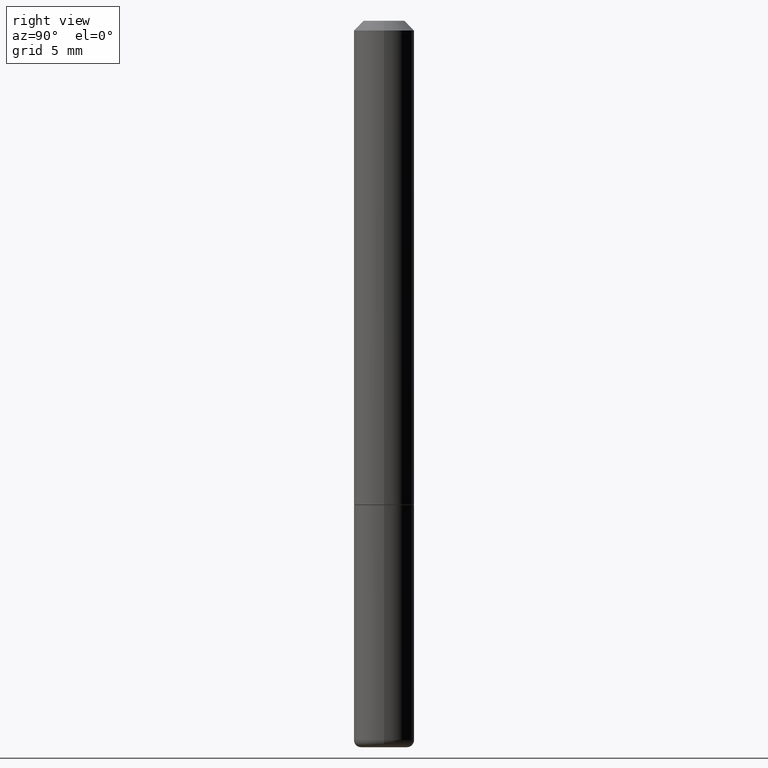
[diagram: clean part render]
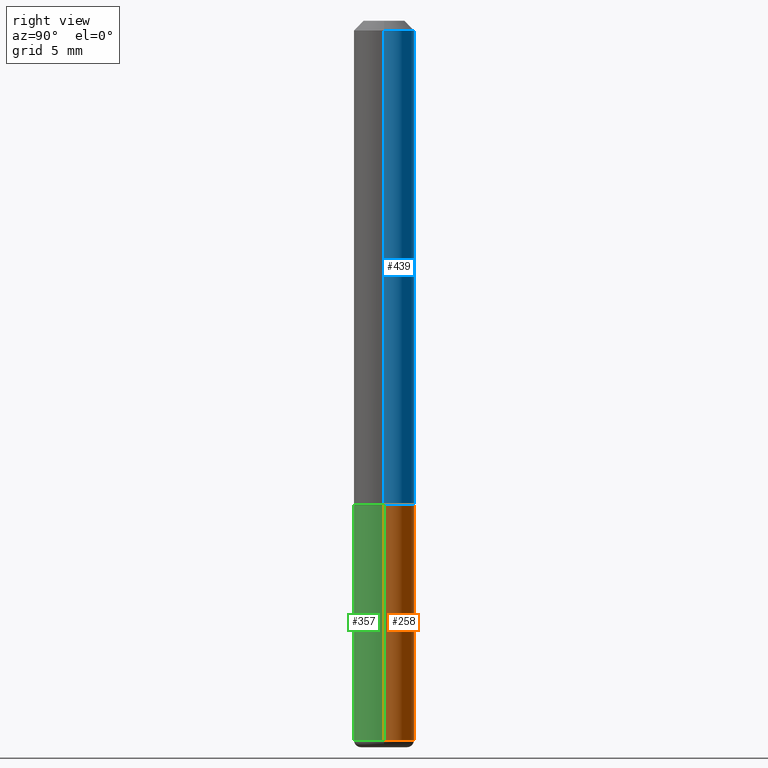
[diagram: same view with three faces highlighted in distinct colors, each labeled with its STEP entity id]
A machine part, right view with three faces highlighted in distinct colors.
Their STEP definitions:

[orange] entity #258 — the highlighted cylindrical surface (edge-blend (fillet) strip) has radius 1.5875 mm, axis along (-0, 0, 1).
#5 = ORIENTED_EDGE ( 'NONE', *, *, #74, .F. ) ;
#15 = DIRECTION ( 'NONE',  ( 1.000000000000000000, -6.982962677686259611E-15, 0.000000000000000000 ) ) ;
#16 = VECTOR ( 'NONE', #86, 39.37007874015748143 ) ;
#23 = EDGE_CURVE ( 'NONE', #211, #413, #202, .T. ) ;
#28 = CARTESIAN_POINT ( 'NONE',  ( 0.06249999999999988204, -4.364351673553908312E-16, 3.047610484872453915E-30 ) ) ;
#37 = CIRCLE ( 'NONE', #422, 0.06250000000000001388 ) ;
#74 = EDGE_CURVE ( 'NONE', #166, #253, #37, .T. ) ;
#83 = DIRECTION ( 'NONE',  ( -2.445468806185136597E-29, 3.491481338843145583E-15, 1.000000000000000000 ) ) ;
#86 = DIRECTION ( 'NONE',  ( -2.445468806185136877E-29, 3.491481338843145188E-15, 1.000000000000000000 ) ) ;
#93 = AXIS2_PLACEMENT_3D ( 'NONE', #189, #333, #121 ) ;
#95 = CYLINDRICAL_SURFACE ( 'NONE', #93, 0.06249999999999988204 ) ;
#121 = DIRECTION ( 'NONE',  ( 1.000000000000000000, -6.982962677686266711E-15, 4.876176775795935232E-29 ) ) ;
#133 = EDGE_CURVE ( 'NONE', #413, #253, #145, .T. ) ;
#145 = LINE ( 'NONE', #393, #16 ) ;
#165 = AXIS2_PLACEMENT_3D ( 'NONE', #213, #83, #15 ) ;
#166 = VERTEX_POINT ( 'NONE', #362 ) ;
#171 = CARTESIAN_POINT ( 'NONE',  ( -0.06249999999999975020, -3.894112240816274685E-15, -1.485020556978682515 ) ) ;
#189 = CARTESIAN_POINT ( 'NONE',  ( 0.000000000000000000, 0.000000000000000000, 0.000000000000000000 ) ) ;
#190 = CARTESIAN_POINT ( 'NONE',  ( 0.06249999999999975020, -5.621356729844913983E-15, -1.485020556978682515 ) ) ;
#191 = EDGE_CURVE ( 'NONE', #211, #166, #363, .T. ) ;
#202 = CIRCLE ( 'NONE', #165, 0.06249999999999975020 ) ;
#211 = VERTEX_POINT ( 'NONE', #190 ) ;
#213 = CARTESIAN_POINT ( 'NONE',  ( 3.631571448635045368E-29, -5.184921562489524681E-15, -1.485020556978682515 ) ) ;
#216 = ORIENTED_EDGE ( 'NONE', *, *, #191, .F. ) ;
#225 = CARTESIAN_POINT ( 'NONE',  ( -0.06250000000000001388, -3.894112240816274685E-15, -1.000000000000000222 ) ) ;
#246 = ORIENTED_EDGE ( 'NONE', *, *, #23, .T. ) ;
#251 = CARTESIAN_POINT ( 'NONE',  ( 2.445468806185137438E-29, -3.491481338843146371E-15, -1.000000000000000222 ) ) ;
#253 = VERTEX_POINT ( 'NONE', #225 ) ;
#258 = ADVANCED_FACE ( 'NONE', ( #291 ), #95, .T. ) ;
#269 = ORIENTED_EDGE ( 'NONE', *, *, #133, .T. ) ;
#285 = DIRECTION ( 'NONE',  ( 1.000000000000000000, -6.982962677686269077E-15, 0.000000000000000000 ) ) ;
#291 = FACE_OUTER_BOUND ( 'NONE', #441, .T. ) ;
#326 = VECTOR ( 'NONE', #365, 39.37007874015748143 ) ;
#333 = DIRECTION ( 'NONE',  ( -2.445468806185136597E-29, 3.491481338843145583E-15, 1.000000000000000000 ) ) ;
#362 = CARTESIAN_POINT ( 'NONE',  ( 0.06250000000000001388, -3.927916506198538435E-15, -1.000000000000000222 ) ) ;
#363 = LINE ( 'NONE', #28, #326 ) ;
#365 = DIRECTION ( 'NONE',  ( -2.445468806185136877E-29, 3.491481338843145188E-15, 1.000000000000000000 ) ) ;
#393 = CARTESIAN_POINT ( 'NONE',  ( -0.06249999999999988204, 4.440892098500617780E-16, -3.074334431409310158E-30 ) ) ;
#413 = VERTEX_POINT ( 'NONE', #171 ) ;
#422 = AXIS2_PLACEMENT_3D ( 'NONE', #251, #423, #285 ) ;
#423 = DIRECTION ( 'NONE',  ( -2.445468806185136597E-29, 3.491481338843145583E-15, 1.000000000000000000 ) ) ;
#441 = EDGE_LOOP ( 'NONE', ( #246, #269, #5, #216 ) ) ;

[blue] entity #439 — the highlighted cylindrical surface (edge-blend (fillet) strip) has radius 1.5875 mm, axis along (-0, 0, 1).
#4 = CARTESIAN_POINT ( 'NONE',  ( 0.000000000000000000, 0.000000000000000000, 0.000000000000000000 ) ) ;
#6 = CARTESIAN_POINT ( 'NONE',  ( -0.06249999999999988204, 4.440892098500617780E-16, -3.074334431409310158E-30 ) ) ;
#13 = DIRECTION ( 'NONE',  ( 1.000000000000000000, -6.982962677686268288E-15, 0.000000000000000000 ) ) ;
#30 = VECTOR ( 'NONE', #295, 39.37007874015748143 ) ;
#44 = EDGE_CURVE ( 'NONE', #378, #266, #64, .T. ) ;
#57 = LINE ( 'NONE', #6, #162 ) ;
#62 = CARTESIAN_POINT ( 'NONE',  ( 0.06249999999999988204, -4.364351673553908312E-16, 3.047610484872453915E-30 ) ) ;
#63 = DIRECTION ( 'NONE',  ( 1.000000000000000000, -6.982962677686266711E-15, 4.876176775795935232E-29 ) ) ;
#64 = CIRCLE ( 'NONE', #437, 0.06249999999999995143 ) ;
#90 = LINE ( 'NONE', #62, #30 ) ;
#100 = AXIS2_PLACEMENT_3D ( 'NONE', #203, #416, #308 ) ;
#101 = ORIENTED_EDGE ( 'NONE', *, *, #424, .F. ) ;
#116 = CIRCLE ( 'NONE', #100, 0.06249999999999981265 ) ;
#125 = CARTESIAN_POINT ( 'NONE',  ( 0.06249999999999981265, -4.986107516375823445E-16, -0.01999999999999999001 ) ) ;
#135 = CARTESIAN_POINT ( 'NONE',  ( 0.06249999999999995143, -3.924425024859695428E-15, -0.9990000000000004432 ) ) ;
#137 = DIRECTION ( 'NONE',  ( -2.445468806185136877E-29, 3.491481338843145188E-15, 1.000000000000000000 ) ) ;
#157 = AXIS2_PLACEMENT_3D ( 'NONE', #4, #335, #63 ) ;
#162 = VECTOR ( 'NONE', #137, 39.37007874015748143 ) ;
#196 = ORIENTED_EDGE ( 'NONE', *, *, #44, .T. ) ;
#198 = ORIENTED_EDGE ( 'NONE', *, *, #312, .T. ) ;
#203 = CARTESIAN_POINT ( 'NONE',  ( 4.890937612370270531E-31, -6.982962677686289144E-17, -0.01999999999999999001 ) ) ;
#205 = ORIENTED_EDGE ( 'NONE', *, *, #210, .F. ) ;
#210 = EDGE_CURVE ( 'NONE', #378, #248, #90, .T. ) ;
#222 = CARTESIAN_POINT ( 'NONE',  ( -0.06249999999999981265, 3.666055405785274344E-16, -0.01999999999999999001 ) ) ;
#228 = EDGE_LOOP ( 'NONE', ( #196, #198, #101, #205 ) ) ;
#231 = FACE_OUTER_BOUND ( 'NONE', #228, .T. ) ;
#248 = VERTEX_POINT ( 'NONE', #125 ) ;
#266 = VERTEX_POINT ( 'NONE', #334 ) ;
#282 = CARTESIAN_POINT ( 'NONE',  ( 2.443023337378952675E-29, -3.487989857504303759E-15, -0.9990000000000004432 ) ) ;
#295 = DIRECTION ( 'NONE',  ( -2.445468806185136877E-29, 3.491481338843145188E-15, 1.000000000000000000 ) ) ;
#301 = VERTEX_POINT ( 'NONE', #222 ) ;
#308 = DIRECTION ( 'NONE',  ( 1.000000000000000000, -6.982962677686266711E-15, 0.000000000000000000 ) ) ;
#312 = EDGE_CURVE ( 'NONE', #266, #301, #57, .T. ) ;
#318 = DIRECTION ( 'NONE',  ( -2.445468806185136597E-29, 3.491481338843145583E-15, 1.000000000000000000 ) ) ;
#334 = CARTESIAN_POINT ( 'NONE',  ( -0.06249999999999995143, -1.334820532290519137E-15, -0.9990000000000004432 ) ) ;
#335 = DIRECTION ( 'NONE',  ( -2.445468806185136597E-29, 3.491481338843145583E-15, 1.000000000000000000 ) ) ;
#366 = CYLINDRICAL_SURFACE ( 'NONE', #157, 0.06249999999999988204 ) ;
#378 = VERTEX_POINT ( 'NONE', #135 ) ;
#416 = DIRECTION ( 'NONE',  ( -2.445468806185136597E-29, 3.491481338843145583E-15, 1.000000000000000000 ) ) ;
#424 = EDGE_CURVE ( 'NONE', #248, #301, #116, .T. ) ;
#437 = AXIS2_PLACEMENT_3D ( 'NONE', #282, #318, #13 ) ;
#439 = ADVANCED_FACE ( 'NONE', ( #231 ), #366, .T. ) ;

[green] entity #357 — the highlighted cylindrical surface (edge-blend (fillet) strip) has radius 1.5875 mm, axis along (-0, 0, 1).
#16 = VECTOR ( 'NONE', #86, 39.37007874015748143 ) ;
#28 = CARTESIAN_POINT ( 'NONE',  ( 0.06249999999999988204, -4.364351673553908312E-16, 3.047610484872453915E-30 ) ) ;
#68 = CYLINDRICAL_SURFACE ( 'NONE', #221, 0.06249999999999988204 ) ;
#86 = DIRECTION ( 'NONE',  ( -2.445468806185136877E-29, 3.491481338843145188E-15, 1.000000000000000000 ) ) ;
#88 = AXIS2_PLACEMENT_3D ( 'NONE', #197, #275, #343 ) ;
#108 = AXIS2_PLACEMENT_3D ( 'NONE', #219, #112, #224 ) ;
#112 = DIRECTION ( 'NONE',  ( -2.445468806185136597E-29, 3.491481338843145583E-15, 1.000000000000000000 ) ) ;
#133 = EDGE_CURVE ( 'NONE', #413, #253, #145, .T. ) ;
#145 = LINE ( 'NONE', #393, #16 ) ;
#149 = EDGE_CURVE ( 'NONE', #413, #211, #263, .T. ) ;
#166 = VERTEX_POINT ( 'NONE', #362 ) ;
#171 = CARTESIAN_POINT ( 'NONE',  ( -0.06249999999999975020, -3.894112240816274685E-15, -1.485020556978682515 ) ) ;
#173 = DIRECTION ( 'NONE',  ( 1.000000000000000000, -6.982962677686266711E-15, 4.876176775795935232E-29 ) ) ;
#190 = CARTESIAN_POINT ( 'NONE',  ( 0.06249999999999975020, -5.621356729844913983E-15, -1.485020556978682515 ) ) ;
#191 = EDGE_CURVE ( 'NONE', #211, #166, #363, .T. ) ;
#197 = CARTESIAN_POINT ( 'NONE',  ( 2.445468806185137438E-29, -3.491481338843146371E-15, -1.000000000000000222 ) ) ;
#199 = ORIENTED_EDGE ( 'NONE', *, *, #149, .T. ) ;
#207 = ORIENTED_EDGE ( 'NONE', *, *, #133, .F. ) ;
#211 = VERTEX_POINT ( 'NONE', #190 ) ;
#219 = CARTESIAN_POINT ( 'NONE',  ( 3.631571448635045368E-29, -5.184921562489524681E-15, -1.485020556978682515 ) ) ;
#221 = AXIS2_PLACEMENT_3D ( 'NONE', #442, #273, #173 ) ;
#224 = DIRECTION ( 'NONE',  ( 1.000000000000000000, -6.982962677686259611E-15, 0.000000000000000000 ) ) ;
#225 = CARTESIAN_POINT ( 'NONE',  ( -0.06250000000000001388, -3.894112240816274685E-15, -1.000000000000000222 ) ) ;
#232 = FACE_OUTER_BOUND ( 'NONE', #346, .T. ) ;
#253 = VERTEX_POINT ( 'NONE', #225 ) ;
#263 = CIRCLE ( 'NONE', #108, 0.06249999999999975020 ) ;
#273 = DIRECTION ( 'NONE',  ( -2.445468806185136597E-29, 3.491481338843145583E-15, 1.000000000000000000 ) ) ;
#275 = DIRECTION ( 'NONE',  ( -2.445468806185136597E-29, 3.491481338843145583E-15, 1.000000000000000000 ) ) ;
#326 = VECTOR ( 'NONE', #365, 39.37007874015748143 ) ;
#337 = ORIENTED_EDGE ( 'NONE', *, *, #191, .T. ) ;
#343 = DIRECTION ( 'NONE',  ( 1.000000000000000000, -6.982962677686269077E-15, 0.000000000000000000 ) ) ;
#346 = EDGE_LOOP ( 'NONE', ( #207, #199, #337, #418 ) ) ;
#357 = ADVANCED_FACE ( 'NONE', ( #232 ), #68, .T. ) ;
#362 = CARTESIAN_POINT ( 'NONE',  ( 0.06250000000000001388, -3.927916506198538435E-15, -1.000000000000000222 ) ) ;
#363 = LINE ( 'NONE', #28, #326 ) ;
#365 = DIRECTION ( 'NONE',  ( -2.445468806185136877E-29, 3.491481338843145188E-15, 1.000000000000000000 ) ) ;
#386 = EDGE_CURVE ( 'NONE', #253, #166, #402, .T. ) ;
#393 = CARTESIAN_POINT ( 'NONE',  ( -0.06249999999999988204, 4.440892098500617780E-16, -3.074334431409310158E-30 ) ) ;
#402 = CIRCLE ( 'NONE', #88, 0.06250000000000001388 ) ;
#413 = VERTEX_POINT ( 'NONE', #171 ) ;
#418 = ORIENTED_EDGE ( 'NONE', *, *, #386, .F. ) ;
#442 = CARTESIAN_POINT ( 'NONE',  ( 0.000000000000000000, 0.000000000000000000, 0.000000000000000000 ) ) ;